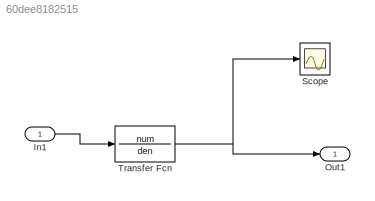
MODEL slx_60dee8182515
KIND model
BLOCK [Inport] In1
  IconDisplay = Port number
BLOCK [Outport] Out1
  IconDisplay = Port number
BLOCK [Scope] Scope
  Floating = off
  NumInputPorts = 1
  Ports = [1]
  ShowLegends = off
BLOCK [TransferFcn] Transfer Fcn
  Denominator = den
  Numerator = num
LINE In1:1 -> Transfer Fcn:1
NET Transfer Fcn:1 -> Out1:1, Scope:1
note: NET lines group one-source signal fan-out (src -> all destinations, sorted); 1:1 wires keep LINE
